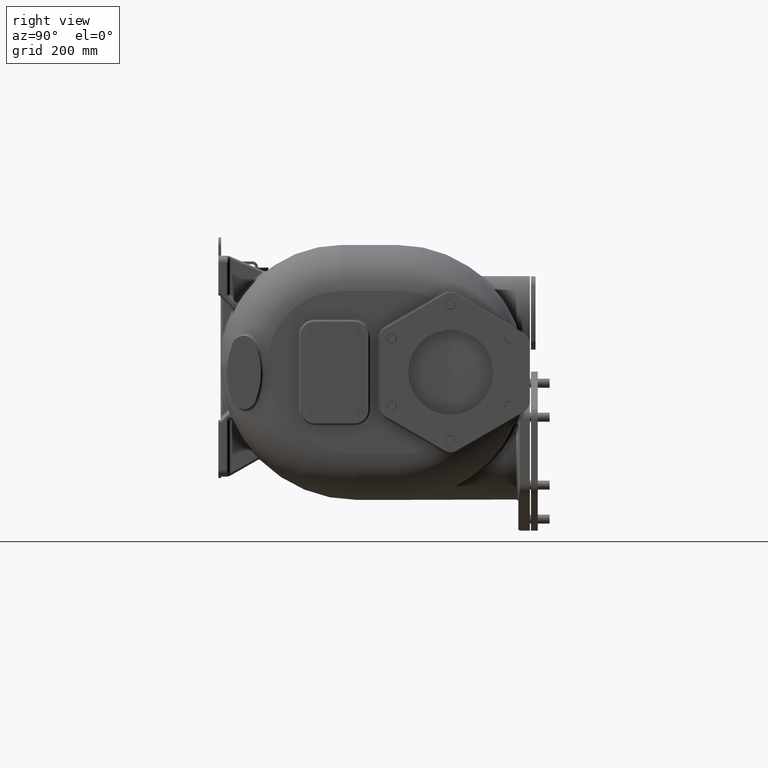
[diagram: clean part render]
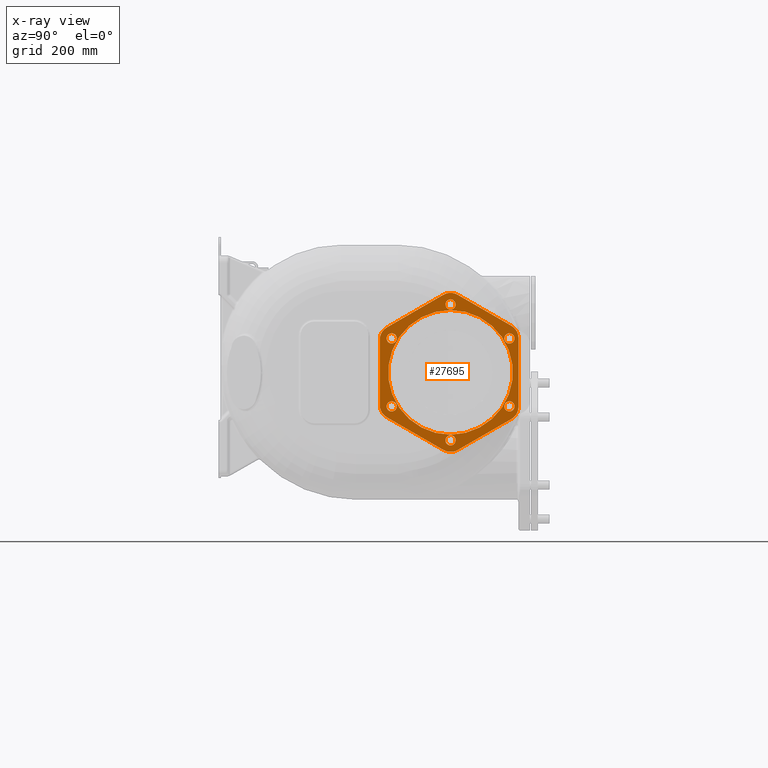
[diagram: x-ray — body ghosted, one internal face saturated and labeled with its STEP entity id]
A machine part, right view, then the same camera in x-ray: the body is ghosted and one INTERNAL B-rep face — a face not visible from any outside direction — is saturated and labeled: STEP entity #27695.
In plain terms, the highlighted planar face has unit normal (-1, 0, 0).
Its self-contained STEP definition (entity closure, byte-faithful):
#9275=DIRECTION('',(0.E0,-8.660254037844E-1,5.E-1));
#9276=VECTOR('',#9275,1.154700538379E2);
#9277=CARTESIAN_POINT('',(2.035E2,3.975E2,-1.631206889325E2));
#9278=LINE('',#9277,#9276);
#9331=CARTESIAN_POINT('',(2.035E2,3.1E2,-8.373502691896E1));
#9332=DIRECTION('',(1.E0,0.E0,0.E0));
#9333=DIRECTION('',(0.E0,-1.E0,0.E0));
#9334=AXIS2_PLACEMENT_3D('',#9331,#9332,#9333);
#9340=DIRECTION('',(0.E0,0.E0,1.E0));
#9341=VECTOR('',#9340,1.154700538379E2);
#9342=CARTESIAN_POINT('',(2.035E2,2.85E2,-8.373502691896E1));
#9343=LINE('',#9342,#9341);
#9382=CARTESIAN_POINT('',(2.035E2,3.1E2,3.173502691896E1));
#9383=DIRECTION('',(1.E0,0.E0,0.E0));
#9384=DIRECTION('',(0.E0,-5.E-1,8.660254037844E-1));
#9385=AXIS2_PLACEMENT_3D('',#9382,#9383,#9384);
#9391=DIRECTION('',(0.E0,8.660254037844E-1,5.E-1));
#9392=VECTOR('',#9391,1.154700538379E2);
#9393=CARTESIAN_POINT('',(2.035E2,2.975E2,5.338566201357E1));
#9394=LINE('',#9393,#9392);
#9447=CARTESIAN_POINT('',(2.035E2,4.1E2,8.947005383793E1));
#9448=DIRECTION('',(1.E0,0.E0,0.E0));
#9449=DIRECTION('',(0.E0,5.E-1,8.660254037844E-1));
#9450=AXIS2_PLACEMENT_3D('',#9447,#9448,#9449);
#9456=DIRECTION('',(0.E0,8.660254037844E-1,-5.E-1));
#9457=VECTOR('',#9456,1.096965511460E2);
#9458=CARTESIAN_POINT('',(2.035E2,4.225E2,1.111206889325E2));
#9459=LINE('',#9458,#9457);
#9562=DIRECTION('',(0.E0,0.E0,-1.E0));
#9563=VECTOR('',#9562,1.212435565298E2);
#9564=CARTESIAN_POINT('',(2.035E2,5.3E2,3.462177826491E1));
#9565=LINE('',#9564,#9563);
#9570=CARTESIAN_POINT('',(2.035E2,5.05E2,-8.662177826491E1));
#9571=DIRECTION('',(1.E0,0.E0,0.E0));
#9572=DIRECTION('',(0.E0,5.E-1,-8.660254037844E-1));
#9573=AXIS2_PLACEMENT_3D('',#9570,#9571,#9572);
#9579=DIRECTION('',(0.E0,-8.660254037844E-1,-5.E-1));
#9580=VECTOR('',#9579,1.096965511460E2);
#9581=CARTESIAN_POINT('',(2.035E2,5.175E2,-1.082724133595E2));
#9582=LINE('',#9581,#9580);
#9659=CARTESIAN_POINT('',(2.035E2,4.1E2,-1.414700538379E2));
#9660=DIRECTION('',(1.E0,0.E0,0.E0));
#9661=DIRECTION('',(0.E0,-5.E-1,-8.660254037844E-1));
#9662=AXIS2_PLACEMENT_3D('',#9659,#9660,#9661);
#9664=CARTESIAN_POINT('',(2.035E2,4.1E2,9.4E1));
#9665=DIRECTION('',(1.E0,0.E0,0.E0));
#9666=DIRECTION('',(0.E0,0.E0,1.E0));
#9667=AXIS2_PLACEMENT_3D('',#9664,#9665,#9666);
#9669=CARTESIAN_POINT('',(2.035E2,4.1E2,9.4E1));
#9670=DIRECTION('',(1.E0,0.E0,0.E0));
#9671=DIRECTION('',(0.E0,0.E0,-1.E0));
#9672=AXIS2_PLACEMENT_3D('',#9669,#9670,#9671);
#9674=CARTESIAN_POINT('',(2.035E2,5.139230484541E2,3.4E1));
#9675=DIRECTION('',(1.E0,0.E0,0.E0));
#9676=DIRECTION('',(0.E0,8.660254037844E-1,5.E-1));
#9677=AXIS2_PLACEMENT_3D('',#9674,#9675,#9676);
#9679=CARTESIAN_POINT('',(2.035E2,5.139230484541E2,3.4E1));
#9680=DIRECTION('',(1.E0,0.E0,0.E0));
#9681=DIRECTION('',(0.E0,-8.660254037844E-1,-5.E-1));
#9682=AXIS2_PLACEMENT_3D('',#9679,#9680,#9681);
#9684=CARTESIAN_POINT('',(2.035E2,5.139230484541E2,-8.6E1));
#9685=DIRECTION('',(1.E0,0.E0,0.E0));
#9686=DIRECTION('',(0.E0,8.660254037844E-1,-5.E-1));
#9687=AXIS2_PLACEMENT_3D('',#9684,#9685,#9686);
#9689=CARTESIAN_POINT('',(2.035E2,5.139230484541E2,-8.6E1));
#9690=DIRECTION('',(1.E0,0.E0,0.E0));
#9691=DIRECTION('',(0.E0,-8.660254037844E-1,5.E-1));
#9692=AXIS2_PLACEMENT_3D('',#9689,#9690,#9691);
#9694=CARTESIAN_POINT('',(2.035E2,4.1E2,-1.46E2));
#9695=DIRECTION('',(1.E0,0.E0,0.E0));
#9696=DIRECTION('',(0.E0,0.E0,-1.E0));
#9697=AXIS2_PLACEMENT_3D('',#9694,#9695,#9696);
#9699=CARTESIAN_POINT('',(2.035E2,4.1E2,-1.46E2));
#9700=DIRECTION('',(1.E0,0.E0,0.E0));
#9701=DIRECTION('',(0.E0,0.E0,1.E0));
#9702=AXIS2_PLACEMENT_3D('',#9699,#9700,#9701);
#9704=CARTESIAN_POINT('',(2.035E2,3.060769515459E2,-8.6E1));
#9705=DIRECTION('',(1.E0,0.E0,0.E0));
#9706=DIRECTION('',(0.E0,-8.660254037844E-1,-5.E-1));
#9707=AXIS2_PLACEMENT_3D('',#9704,#9705,#9706);
#9709=CARTESIAN_POINT('',(2.035E2,3.060769515459E2,-8.6E1));
#9710=DIRECTION('',(1.E0,0.E0,0.E0));
#9711=DIRECTION('',(0.E0,8.660254037844E-1,5.E-1));
#9712=AXIS2_PLACEMENT_3D('',#9709,#9710,#9711);
#9714=CARTESIAN_POINT('',(2.035E2,3.060769515459E2,3.4E1));
#9715=DIRECTION('',(1.E0,0.E0,0.E0));
#9716=DIRECTION('',(0.E0,-8.660254037844E-1,5.E-1));
#9717=AXIS2_PLACEMENT_3D('',#9714,#9715,#9716);
#9719=CARTESIAN_POINT('',(2.035E2,3.060769515459E2,3.4E1));
#9720=DIRECTION('',(1.E0,0.E0,0.E0));
#9721=DIRECTION('',(0.E0,8.660254037844E-1,-5.E-1));
#9722=AXIS2_PLACEMENT_3D('',#9719,#9720,#9721);
#9724=CARTESIAN_POINT('',(2.035E2,4.1E2,-2.6E1));
#9725=DIRECTION('',(1.E0,0.E0,0.E0));
#9726=DIRECTION('',(0.E0,0.E0,-1.E0));
#9727=AXIS2_PLACEMENT_3D('',#9724,#9725,#9726);
#9729=CARTESIAN_POINT('',(2.035E2,4.1E2,-2.6E1));
#9730=DIRECTION('',(1.E0,0.E0,0.E0));
#9731=DIRECTION('',(0.E0,0.E0,1.E0));
#9732=AXIS2_PLACEMENT_3D('',#9729,#9730,#9731);
#9734=CARTESIAN_POINT('',(2.035E2,5.05E2,3.462177826491E1));
#9735=DIRECTION('',(1.E0,0.E0,0.E0));
#9736=DIRECTION('',(0.E0,1.E0,0.E0));
#9737=AXIS2_PLACEMENT_3D('',#9734,#9735,#9736);
#17464=CARTESIAN_POINT('',(2.035E2,4.1E2,1.03E2));
#17465=CARTESIAN_POINT('',(2.035E2,4.1E2,8.5E1));
#17466=VERTEX_POINT('',#17464);
#17467=VERTEX_POINT('',#17465);
#17468=CARTESIAN_POINT('',(2.035E2,5.217172770882E2,3.85E1));
#17469=CARTESIAN_POINT('',(2.035E2,5.061288198201E2,2.95E1));
#17470=VERTEX_POINT('',#17468);
#17471=VERTEX_POINT('',#17469);
#17472=CARTESIAN_POINT('',(2.035E2,5.217172770882E2,-9.05E1));
#17473=CARTESIAN_POINT('',(2.035E2,5.061288198201E2,-8.15E1));
#17474=VERTEX_POINT('',#17472);
#17475=VERTEX_POINT('',#17473);
#17476=CARTESIAN_POINT('',(2.035E2,4.1E2,-1.55E2));
#17477=CARTESIAN_POINT('',(2.035E2,4.1E2,-1.37E2));
#17478=VERTEX_POINT('',#17476);
#17479=VERTEX_POINT('',#17477);
#17480=CARTESIAN_POINT('',(2.035E2,2.982827229118E2,-9.05E1));
#17481=CARTESIAN_POINT('',(2.035E2,3.138711801799E2,-8.15E1));
#17482=VERTEX_POINT('',#17480);
#17483=VERTEX_POINT('',#17481);
#17484=CARTESIAN_POINT('',(2.035E2,2.982827229118E2,3.85E1));
#17485=CARTESIAN_POINT('',(2.035E2,3.138711801799E2,2.95E1));
#17486=VERTEX_POINT('',#17484);
#17487=VERTEX_POINT('',#17485);
#17488=CARTESIAN_POINT('',(2.035E2,2.85E2,-8.373502691896E1));
#17489=CARTESIAN_POINT('',(2.035E2,2.85E2,3.173502691896E1));
#17490=VERTEX_POINT('',#17488);
#17491=VERTEX_POINT('',#17489);
#17492=CARTESIAN_POINT('',(2.035E2,2.975E2,5.338566201357E1));
#17493=CARTESIAN_POINT('',(2.035E2,3.975E2,1.111206889325E2));
#17494=VERTEX_POINT('',#17492);
#17495=VERTEX_POINT('',#17493);
#17496=CARTESIAN_POINT('',(2.035E2,4.225E2,1.111206889325E2));
#17497=CARTESIAN_POINT('',(2.035E2,5.175E2,5.627241335952E1));
#17498=VERTEX_POINT('',#17496);
#17499=VERTEX_POINT('',#17497);
#17500=CARTESIAN_POINT('',(2.035E2,5.3E2,3.462177826491E1));
#17501=CARTESIAN_POINT('',(2.035E2,5.3E2,-8.662177826491E1));
#17502=VERTEX_POINT('',#17500);
#17503=VERTEX_POINT('',#17501);
#17504=CARTESIAN_POINT('',(2.035E2,5.175E2,-1.082724133595E2));
#17505=CARTESIAN_POINT('',(2.035E2,4.225E2,-1.631206889325E2));
#17506=VERTEX_POINT('',#17504);
#17507=VERTEX_POINT('',#17505);
#17508=CARTESIAN_POINT('',(2.035E2,3.975E2,-1.631206889325E2));
#17509=CARTESIAN_POINT('',(2.035E2,2.975E2,-1.053856620136E2));
#17510=VERTEX_POINT('',#17508);
#17511=VERTEX_POINT('',#17509);
#17567=CARTESIAN_POINT('',(2.035E2,4.1E2,-1.36E2));
#17568=CARTESIAN_POINT('',(2.035E2,4.1E2,8.4E1));
#17569=VERTEX_POINT('',#17567);
#17570=VERTEX_POINT('',#17568);
#27633=CARTESIAN_POINT('',(2.035E2,4.1E2,-2.6E1));
#27634=DIRECTION('',(-1.E0,0.E0,0.E0));
#27635=DIRECTION('',(0.E0,1.E0,0.E0));
#27636=AXIS2_PLACEMENT_3D('',#27633,#27634,#27635);
#27637=PLANE('',#27636);
#27638=ORIENTED_EDGE('',*,*,#27389,.T.);
#27639=ORIENTED_EDGE('',*,*,#27432,.F.);
#27640=ORIENTED_EDGE('',*,*,#27447,.T.);
#27641=ORIENTED_EDGE('',*,*,#27491,.F.);
#27642=ORIENTED_EDGE('',*,*,#27506,.T.);
#27644=ORIENTED_EDGE('',*,*,#27643,.F.);
#27645=ORIENTED_EDGE('',*,*,#27557,.T.);
#27646=ORIENTED_EDGE('',*,*,#27572,.F.);
#27647=ORIENTED_EDGE('',*,*,#27587,.T.);
#27648=ORIENTED_EDGE('',*,*,#27627,.F.);
#27649=ORIENTED_EDGE('',*,*,#27328,.T.);
#27650=ORIENTED_EDGE('',*,*,#27374,.F.);
#27651=EDGE_LOOP('',(#27638,#27639,#27640,#27641,#27642,#27644,#27645,#27646,
#27647,#27648,#27649,#27650));
#27652=FACE_OUTER_BOUND('',#27651,.F.);
#27654=ORIENTED_EDGE('',*,*,#27653,.T.);
#27656=ORIENTED_EDGE('',*,*,#27655,.T.);
#27657=EDGE_LOOP('',(#27654,#27656));
#27658=FACE_BOUND('',#27657,.F.);
#27660=ORIENTED_EDGE('',*,*,#27659,.T.);
#27662=ORIENTED_EDGE('',*,*,#27661,.T.);
#27663=EDGE_LOOP('',(#27660,#27662));
#27664=FACE_BOUND('',#27663,.F.);
#27666=ORIENTED_EDGE('',*,*,#27665,.T.);
#27668=ORIENTED_EDGE('',*,*,#27667,.T.);
#27669=EDGE_LOOP('',(#27666,#27668));
#27670=FACE_BOUND('',#27669,.F.);
#27672=ORIENTED_EDGE('',*,*,#27671,.T.);
#27674=ORIENTED_EDGE('',*,*,#27673,.T.);
#27675=EDGE_LOOP('',(#27672,#27674));
#27676=FACE_BOUND('',#27675,.F.);
#27678=ORIENTED_EDGE('',*,*,#27677,.T.);
#27680=ORIENTED_EDGE('',*,*,#27679,.T.);
#27681=EDGE_LOOP('',(#27678,#27680));
#27682=FACE_BOUND('',#27681,.F.);
#27684=ORIENTED_EDGE('',*,*,#27683,.T.);
#27686=ORIENTED_EDGE('',*,*,#27685,.T.);
#27687=EDGE_LOOP('',(#27684,#27686));
#27688=FACE_BOUND('',#27687,.F.);
#27690=ORIENTED_EDGE('',*,*,#27689,.T.);
#27692=ORIENTED_EDGE('',*,*,#27691,.T.);
#27693=EDGE_LOOP('',(#27690,#27692));
#27694=FACE_BOUND('',#27693,.F.);
#27695=ADVANCED_FACE('',(#27652,#27658,#27664,#27670,#27676,#27682,#27688,
#27694),#27637,.F.);
#9335=CIRCLE('',#9334,2.5E1);
#9386=CIRCLE('',#9385,2.5E1);
#9451=CIRCLE('',#9450,2.5E1);
#9574=CIRCLE('',#9573,2.5E1);
#9663=CIRCLE('',#9662,2.5E1);
#9668=CIRCLE('',#9667,9.E0);
#9673=CIRCLE('',#9672,9.E0);
#9678=CIRCLE('',#9677,9.E0);
#9683=CIRCLE('',#9682,9.E0);
#9688=CIRCLE('',#9687,9.E0);
#9693=CIRCLE('',#9692,9.E0);
#9698=CIRCLE('',#9697,9.E0);
#9703=CIRCLE('',#9702,9.E0);
#9708=CIRCLE('',#9707,9.E0);
#9713=CIRCLE('',#9712,9.E0);
#9718=CIRCLE('',#9717,9.E0);
#9723=CIRCLE('',#9722,9.E0);
#9728=CIRCLE('',#9727,1.1E2);
#9733=CIRCLE('',#9732,1.1E2);
#9738=CIRCLE('',#9737,2.5E1);
#27328=EDGE_CURVE('',#17510,#17511,#9278,.T.);
#27374=EDGE_CURVE('',#17490,#17511,#9335,.T.);
#27389=EDGE_CURVE('',#17490,#17491,#9343,.T.);
#27432=EDGE_CURVE('',#17494,#17491,#9386,.T.);
#27447=EDGE_CURVE('',#17494,#17495,#9394,.T.);
#27491=EDGE_CURVE('',#17498,#17495,#9451,.T.);
#27506=EDGE_CURVE('',#17498,#17499,#9459,.T.);
#27557=EDGE_CURVE('',#17502,#17503,#9565,.T.);
#27572=EDGE_CURVE('',#17506,#17503,#9574,.T.);
#27587=EDGE_CURVE('',#17506,#17507,#9582,.T.);
#27627=EDGE_CURVE('',#17510,#17507,#9663,.T.);
#27643=EDGE_CURVE('',#17502,#17499,#9738,.T.);
#27653=EDGE_CURVE('',#17466,#17467,#9668,.T.);
#27655=EDGE_CURVE('',#17467,#17466,#9673,.T.);
#27659=EDGE_CURVE('',#17470,#17471,#9678,.T.);
#27661=EDGE_CURVE('',#17471,#17470,#9683,.T.);
#27665=EDGE_CURVE('',#17474,#17475,#9688,.T.);
#27667=EDGE_CURVE('',#17475,#17474,#9693,.T.);
#27671=EDGE_CURVE('',#17478,#17479,#9698,.T.);
#27673=EDGE_CURVE('',#17479,#17478,#9703,.T.);
#27677=EDGE_CURVE('',#17482,#17483,#9708,.T.);
#27679=EDGE_CURVE('',#17483,#17482,#9713,.T.);
#27683=EDGE_CURVE('',#17486,#17487,#9718,.T.);
#27685=EDGE_CURVE('',#17487,#17486,#9723,.T.);
#27689=EDGE_CURVE('',#17569,#17570,#9728,.T.);
#27691=EDGE_CURVE('',#17570,#17569,#9733,.T.);